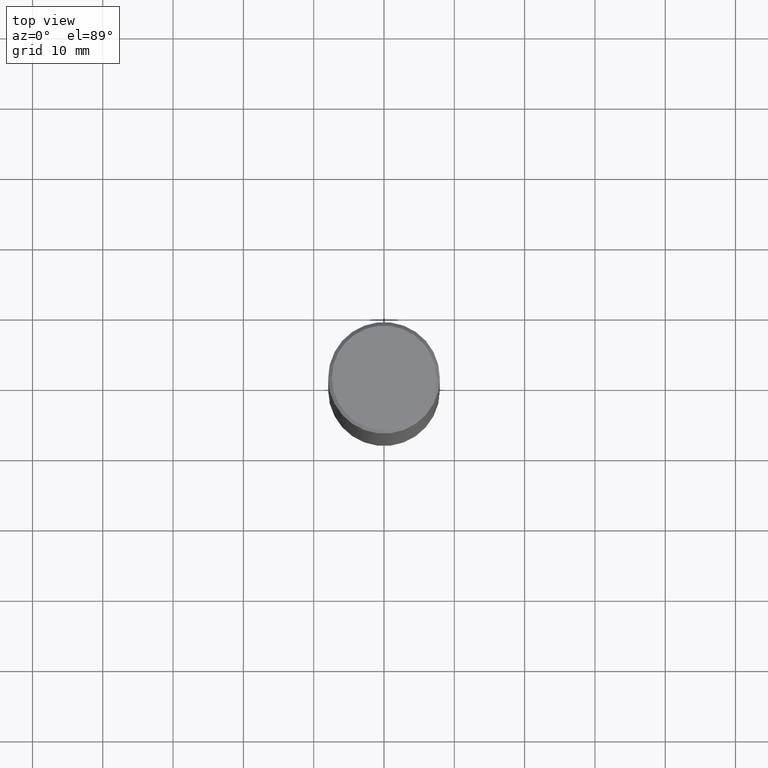
[diagram: clean part render]
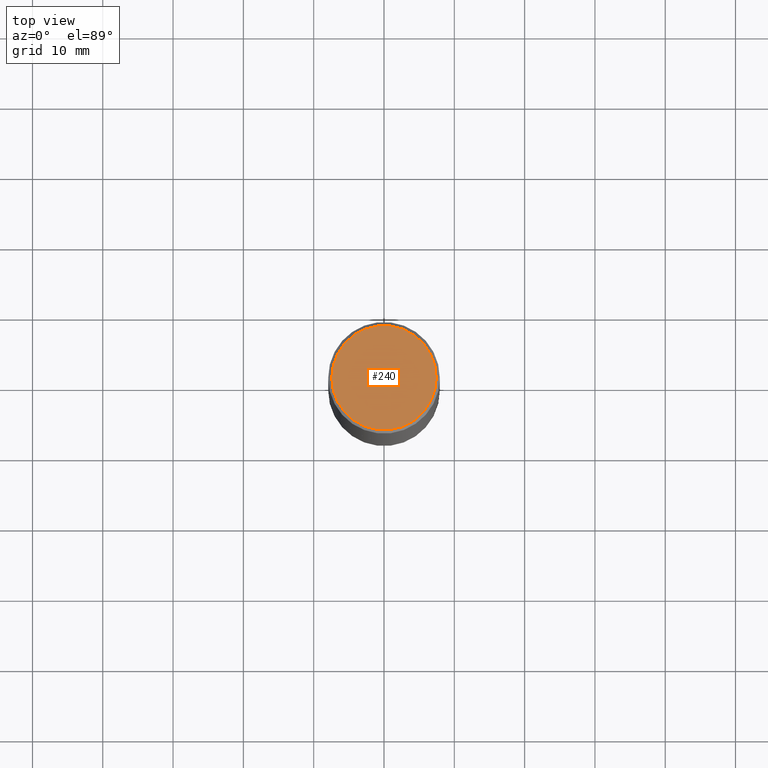
[diagram: same view with one face highlighted and labeled with its STEP entity id]
A machine part, top view. The second image highlights one B-rep face of the part: STEP entity #240.
In plain terms, the highlighted planar face has unit normal (0, -0, -1).
Its self-contained STEP definition (entity closure, byte-faithful):
#10 = CARTESIAN_POINT ( 'NONE',  ( 2.042516583223231356E-15, 0.2924999999999997602, -1.019124035366569212E-15 ) ) ;
#15 = CARTESIAN_POINT ( 'NONE',  ( 0.2924999999999997602, -2.110215457714318353E-15, 4.268512490114932791E-18 ) ) ;
#31 = AXIS2_PLACEMENT_3D ( 'NONE', #100, #92, #185 ) ;
#54 = VERTEX_POINT ( 'NONE', #15 ) ;
#71 = EDGE_CURVE ( 'NONE', #54, #293, #195, .T. ) ;
#83 = ORIENTED_EDGE ( 'NONE', *, *, #71, .T. ) ;
#92 = DIRECTION ( 'NONE',  ( -2.445468806185136597E-29, 3.491481338843145583E-15, 1.000000000000000000 ) ) ;
#100 = CARTESIAN_POINT ( 'NONE',  ( -1.043851414335219820E-46, 1.490343170380447200E-32, 4.268512490100411279E-18 ) ) ;
#103 = CARTESIAN_POINT ( 'NONE',  ( -1.043851414335219820E-46, 1.490343170380447200E-32, 4.268512490100411279E-18 ) ) ;
#115 = ORIENTED_EDGE ( 'NONE', *, *, #229, .T. ) ;
#151 = FACE_OUTER_BOUND ( 'NONE', #341, .T. ) ;
#183 = AXIS2_PLACEMENT_3D ( 'NONE', #103, #187, #306 ) ;
#185 = DIRECTION ( 'NONE',  ( 1.000000000000000000, -6.982962677686266711E-15, 4.876067333457693400E-29 ) ) ;
#187 = DIRECTION ( 'NONE',  ( -2.445468806185136597E-29, 3.491481338843145583E-15, 1.000000000000000000 ) ) ;
#195 = CIRCLE ( 'NONE', #183, 0.2924999999999997602 ) ;
#212 = DIRECTION ( 'NONE',  ( 2.438088387897960049E-29, -3.491481338843145188E-15, -1.000000000000000000 ) ) ;
#229 = EDGE_CURVE ( 'NONE', #293, #54, #302, .T. ) ;
#240 = ADVANCED_FACE ( 'NONE', ( #151 ), #267, .F. ) ;
#251 = CARTESIAN_POINT ( 'NONE',  ( -0.2924999999999997602, 2.077431396611662611E-15, 4.268512490086005323E-18 ) ) ;
#267 = PLANE ( 'NONE',  #350 ) ;
#293 = VERTEX_POINT ( 'NONE', #251 ) ;
#301 = DIRECTION ( 'NONE',  ( -1.000000000000000000, 6.982962677686265922E-15, -4.876176775795935793E-29 ) ) ;
#302 = CIRCLE ( 'NONE', #31, 0.2924999999999997602 ) ;
#306 = DIRECTION ( 'NONE',  ( 1.000000000000000000, -6.982962677686266711E-15, 4.876067333457693400E-29 ) ) ;
#341 = EDGE_LOOP ( 'NONE', ( #115, #83 ) ) ;
#350 = AXIS2_PLACEMENT_3D ( 'NONE', #10, #212, #301 ) ;